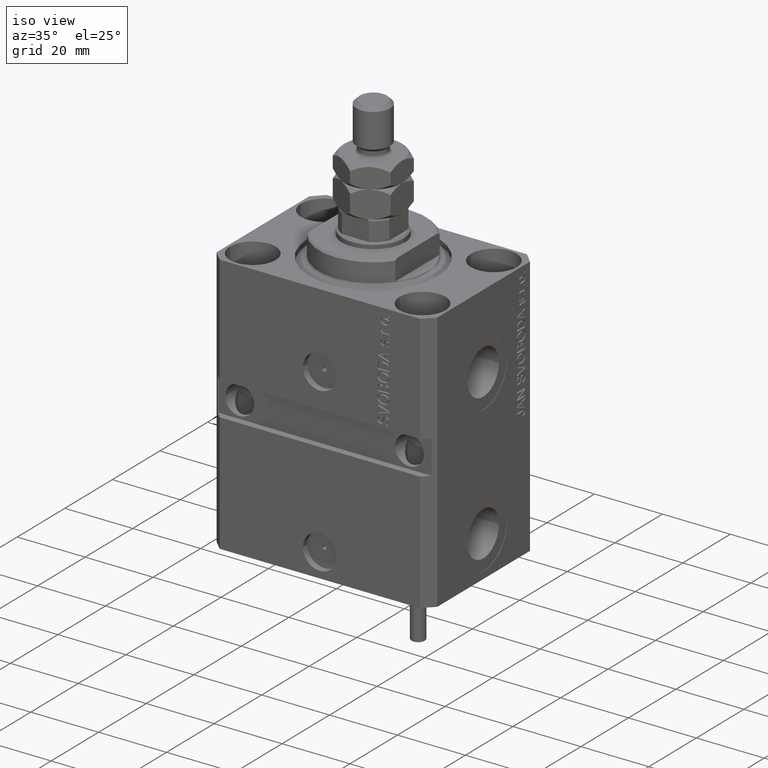
[diagram: clean part render]
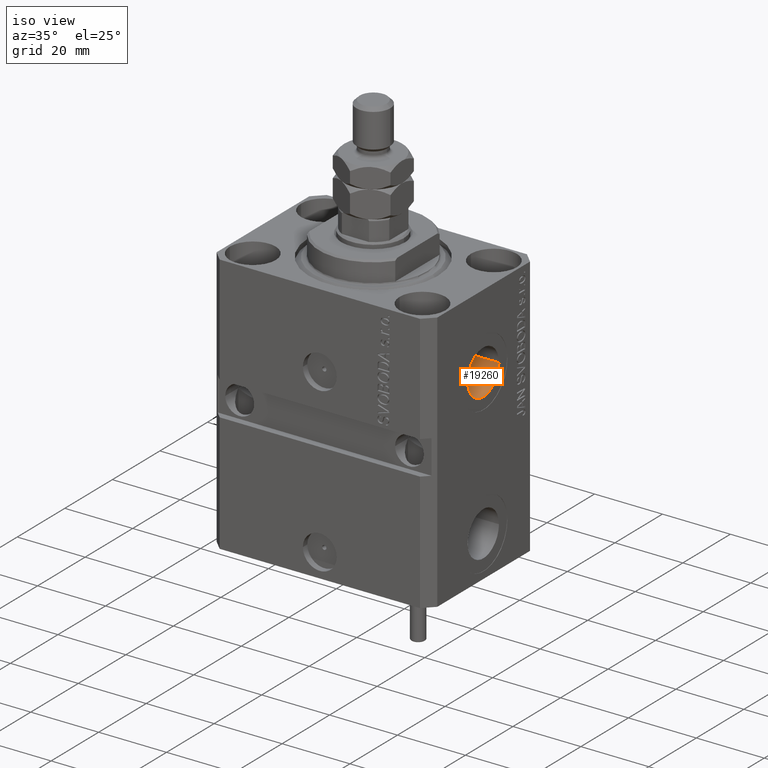
[diagram: same view with one face highlighted and labeled with its STEP entity id]
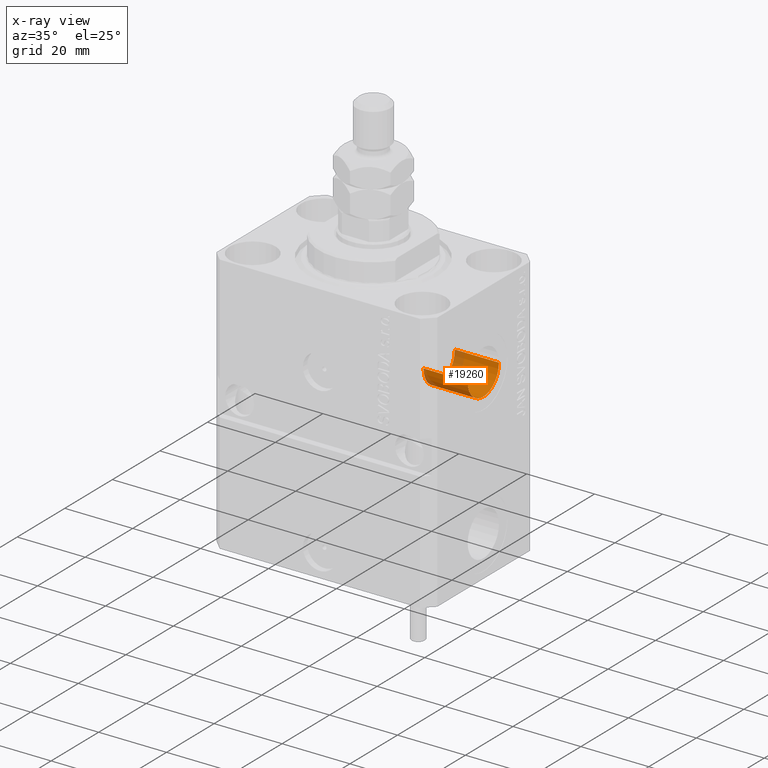
[diagram: x-ray of the same camera — body ghosted, the highlighted face saturated]
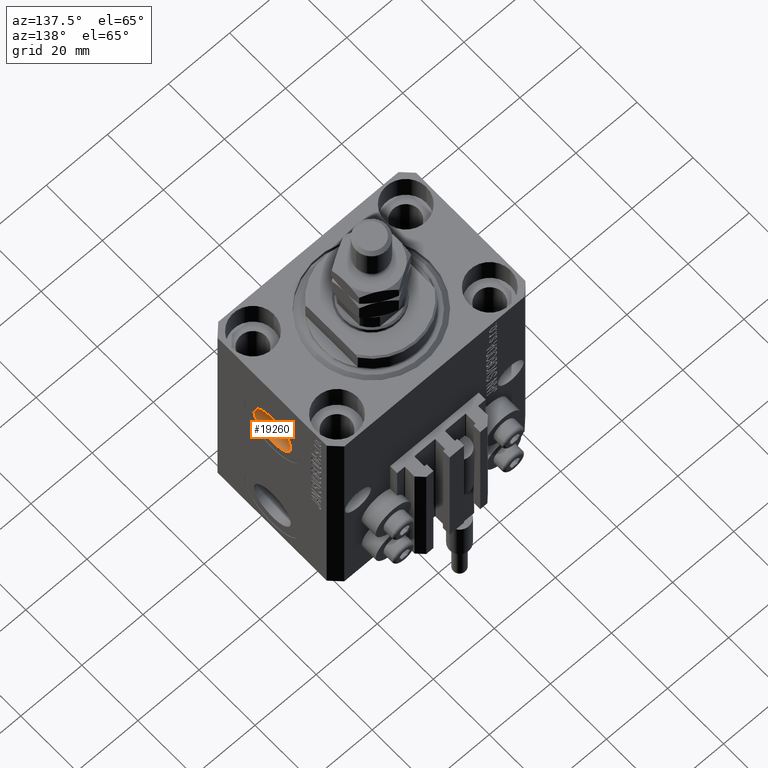
[diagram: same view with one face highlighted and labeled with its STEP entity id]
A machine part, iso view. The second image highlights one B-rep face of the part: STEP entity #19260.
The next image is the same camera in x-ray: the body ghosted, the highlighted face saturated — about 16% of this face is hidden behind the body in this view.
A second angle (auxiliary view) of the same face is appended — the face is thin or edge-on in the first view.
In plain terms, the highlighted cylindrical surface (edge-blend (fillet) strip) has radius 6.58 mm, axis along (1, -0, 0).
Its self-contained STEP definition (entity closure, byte-faithful):
#1548 = AXIS2_PLACEMENT_3D ( 'NONE', #25577, #32875, #24859 ) ;
#2191 = VERTEX_POINT ( 'NONE', #34975 ) ;
#2405 = DIRECTION ( 'NONE',  ( 1.000000000000000000, -1.334402673828349134E-14, 0.000000000000000000 ) ) ;
#2416 = VERTEX_POINT ( 'NONE', #32208 ) ;
#2538 = FACE_OUTER_BOUND ( 'NONE', #4068, .T. ) ;
#3505 = ORIENTED_EDGE ( 'NONE', *, *, #43458, .T. ) ;
#4068 = EDGE_LOOP ( 'NONE', ( #20214, #3505, #44974, #8255 ) ) ;
#7401 = CARTESIAN_POINT ( 'NONE',  ( 19.39999999999686153, 6.579999999999744276, -22.00000000000000000 ) ) ;
#8255 = ORIENTED_EDGE ( 'NONE', *, *, #13056, .F. ) ;
#8541 = DIRECTION ( 'NONE',  ( 1.000000000000000000, -1.334402673828349292E-14, -0.000000000000000000 ) ) ;
#10236 = VERTEX_POINT ( 'NONE', #49233 ) ;
#10864 = EDGE_CURVE ( 'NONE', #10236, #40363, #11241, .T. ) ;
#11241 = CIRCLE ( 'NONE', #14471, 6.580000000000002736 ) ;
#13056 = EDGE_CURVE ( 'NONE', #40363, #2191, #32891, .T. ) ;
#13829 = DIRECTION ( 'NONE',  ( 1.000000000000000000, -1.334402673828349292E-14, -0.000000000000000000 ) ) ;
#14471 = AXIS2_PLACEMENT_3D ( 'NONE', #45772, #15462, #27011 ) ;
#15462 = DIRECTION ( 'NONE',  ( 1.000000000000000000, -1.334402673828349134E-14, 0.000000000000000000 ) ) ;
#15527 = CARTESIAN_POINT ( 'NONE',  ( 19.39999999999668745, -6.580000000000261196, -22.00000000000000000 ) ) ;
#19260 = ADVANCED_FACE ( 'NONE', ( #2538 ), #40149, .F. ) ;
#20214 = ORIENTED_EDGE ( 'NONE', *, *, #10864, .F. ) ;
#23742 = VECTOR ( 'NONE', #13829, 1000.000000000000000 ) ;
#24859 = DIRECTION ( 'NONE',  ( 1.318178933113074700E-14, 1.000000000000000000, 0.000000000000000000 ) ) ;
#25577 = CARTESIAN_POINT ( 'NONE',  ( 19.39999999999677271, -2.588741187226566333E-13, -22.00000000000000000 ) ) ;
#27011 = DIRECTION ( 'NONE',  ( 1.318178933113074700E-14, 1.000000000000000000, 0.000000000000000000 ) ) ;
#27591 = LINE ( 'NONE', #15527, #44246 ) ;
#32208 = CARTESIAN_POINT ( 'NONE',  ( 32.39999999999668034, -6.580000000000433502, -22.00000000000000000 ) ) ;
#32875 = DIRECTION ( 'NONE',  ( 1.000000000000000000, -1.334402673828349292E-14, -0.000000000000000000 ) ) ;
#32891 = LINE ( 'NONE', #48164, #23742 ) ;
#33212 = CARTESIAN_POINT ( 'NONE',  ( 32.39999999999677271, -4.323464663203420381E-13, -22.00000000000000000 ) ) ;
#34975 = CARTESIAN_POINT ( 'NONE',  ( 32.39999999999686509, 6.579999999999570193, -22.00000000000000000 ) ) ;
#39464 = AXIS2_PLACEMENT_3D ( 'NONE', #33212, #2405, #40963 ) ;
#40149 = CYLINDRICAL_SURFACE ( 'NONE', #1548, 6.580000000000002736 ) ;
#40363 = VERTEX_POINT ( 'NONE', #7401 ) ;
#40963 = DIRECTION ( 'NONE',  ( 1.370906090437597808E-14, 1.000000000000000000, 0.000000000000000000 ) ) ;
#41818 = CIRCLE ( 'NONE', #39464, 6.580000000000002736 ) ;
#43197 = EDGE_CURVE ( 'NONE', #2416, #2191, #41818, .T. ) ;
#43458 = EDGE_CURVE ( 'NONE', #10236, #2416, #27591, .T. ) ;
#44246 = VECTOR ( 'NONE', #8541, 1000.000000000000000 ) ;
#44974 = ORIENTED_EDGE ( 'NONE', *, *, #43197, .T. ) ;
#45772 = CARTESIAN_POINT ( 'NONE',  ( 19.39999999999677271, -2.588741187226566333E-13, -22.00000000000000000 ) ) ;
#48164 = CARTESIAN_POINT ( 'NONE',  ( 19.39999999999686153, 6.579999999999744276, -22.00000000000000000 ) ) ;
#49233 = CARTESIAN_POINT ( 'NONE',  ( 19.39999999999668745, -6.580000000000261196, -22.00000000000000000 ) ) ;